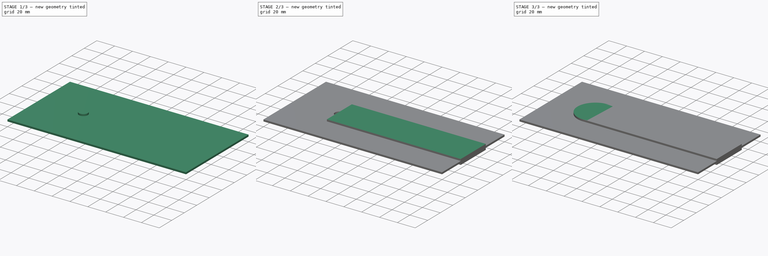
[diagram: build sequence overview — one tinted view per stage of 3, left to right]
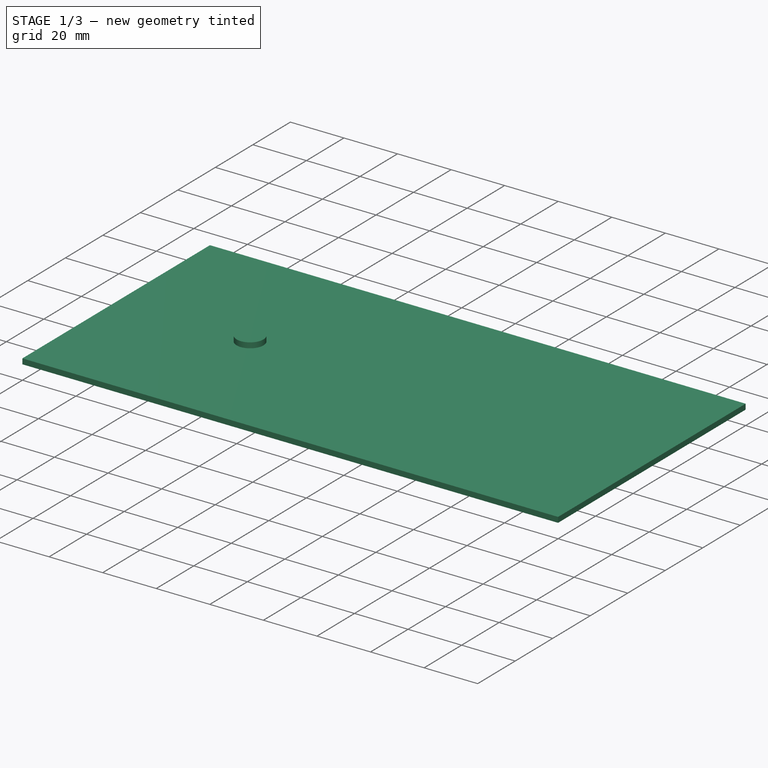
[diagram: stage 1 of 3 — iso view after this stage's code; geometry added in this stage tinted green]
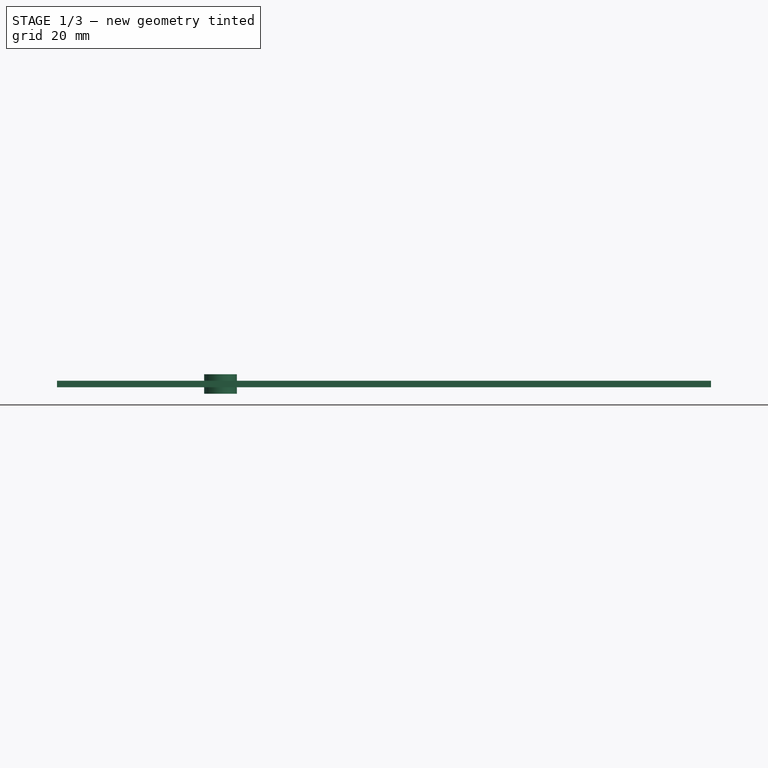
[diagram: stage 1 of 3 — front view after this stage's code; geometry added in this stage tinted green]
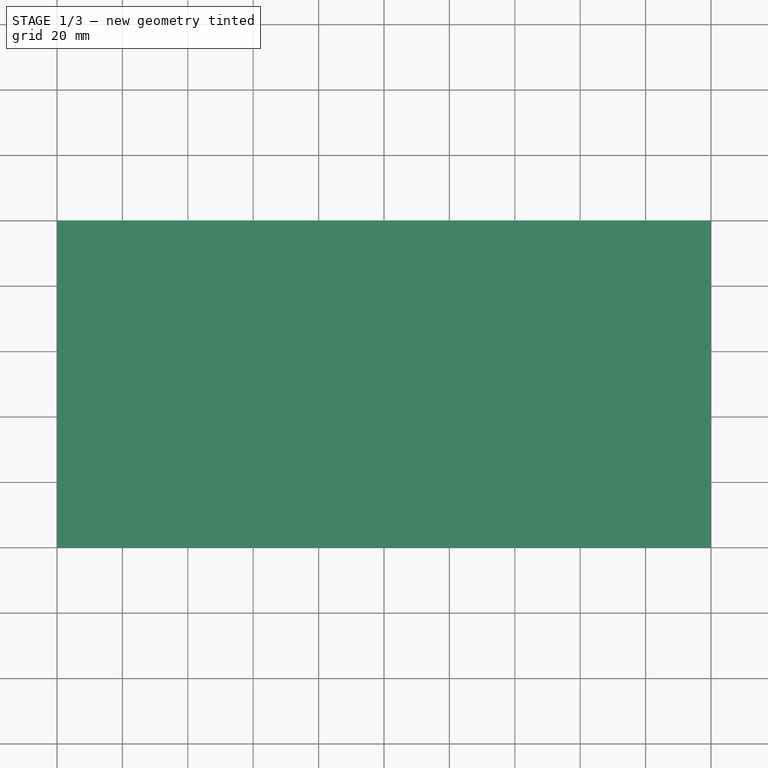
[diagram: stage 1 of 3 — top view after this stage's code; geometry added in this stage tinted green]
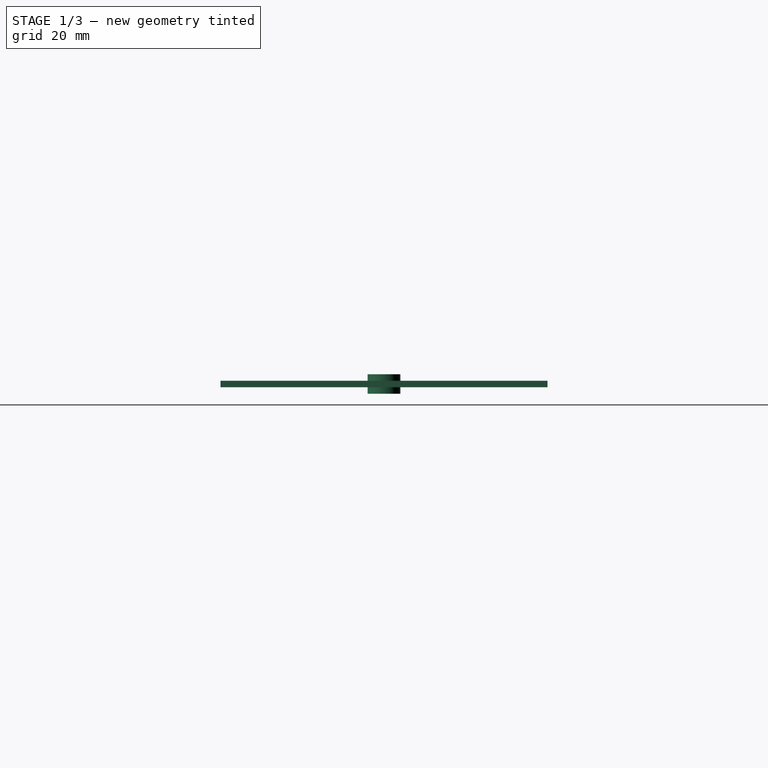
[diagram: stage 1 of 3 — right view after this stage's code; geometry added in this stage tinted green]
FCSTD DOCUMENT  (FreeCAD 0.19R24291 (Git))
Label: vonKarman2D
License: All rights reserved
LicenseURL: http://en.wikipedia.org/wiki/All_rights_reserved
objects: Part::FeaturePython×11, Sketcher::SketchObject×4, PartDesign::Pad×4, PartDesign::Body×4, App::DocumentObjectGroupPython×2, PartDesign::Boolean×1, App::MaterialObjectPython×1
note: 28 computed .brp shape members not serialized (recipe doc carries the construction recipe); baked Part::Feature solids carry a one-line shape summary decoded from their .brp

FEATURE [Sketcher::SketchObject] Sketch
  FullyConstrained = true
  MapMode = 5
  Support = -> [XY_Plane]
  sketch-geometry (5):
    g0: LineSegment StartX=0 StartY=0 StartZ=0 EndX=200 EndY=0 EndZ=0
    g1: LineSegment StartX=200 StartY=0 StartZ=0 EndX=200 EndY=100 EndZ=0
    g2: LineSegment StartX=200 StartY=100 StartZ=0 EndX=0 EndY=100 EndZ=0
    g3: LineSegment StartX=0 StartY=100 StartZ=0 EndX=0 EndY=0 EndZ=0
    g4: GeomPoint X=50 Y=50 Z=0
  constraints (13):
    c: Coincident(g0,g1)
    c: Coincident(g1,g2)
    c: Coincident(g2,g3)
    c: Coincident(g3,g0)
    c: Horizontal(g0)
    c: Horizontal(g2)
    c: Vertical(g1)
    c: Vertical(g3)
    c: Coincident(g0,g-1)
    c: Distance(g4,g3) = 50
    c: Distance(g4,g0) = 50
    c: Distance(g1) = 100
    c: Distance(g0) = 200
FEATURE [PartDesign::Pad] Pad
  Direction = (1,1,1)
  Length = 2
  Length2 = 100
  Profile = -> Sketch
  Type = 0
FEATURE [PartDesign::Body] Body003  label="Box_refinement"
  Group = -> [Sketch003,Pad002]
  Origin = -> Origin003
  Tip = -> Pad002
FEATURE [Sketcher::SketchObject] Sketch004
  FullyConstrained = true
  MapMode = 5
  Support = -> [XY_Plane004]
  sketch-geometry (2):
    g0: GeomPoint X=50 Y=50 Z=0
    g1: Circle CenterX=50 CenterY=50 CenterZ=0 NormalX=0 NormalY=0 NormalZ=1 AngleXU=0 Radius=5
  constraints (4):
    c: DistanceY(g-1,g0) = 50
    c: DistanceX(g-2,g0) = 50
    c: Coincident(g1,g0)
    c: Radius(g1) = 5
FEATURE [PartDesign::Pad] Pad003
  Direction = (1,1,1)
  Length = 4
  Length2 = 2
  Profile = -> Sketch004
  Type = 4
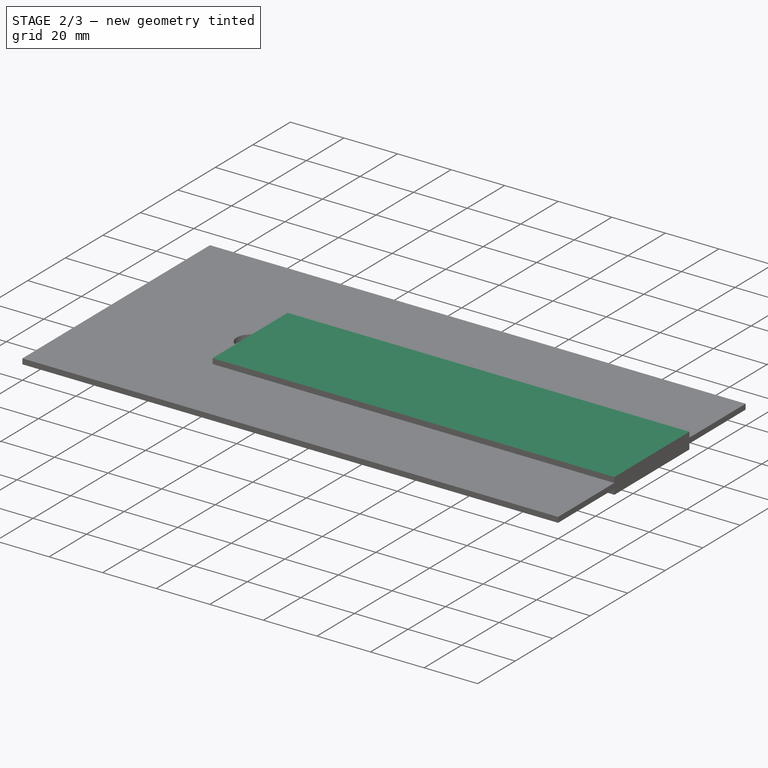
[diagram: stage 2 of 3 — iso view after this stage's code; geometry added in this stage tinted green]
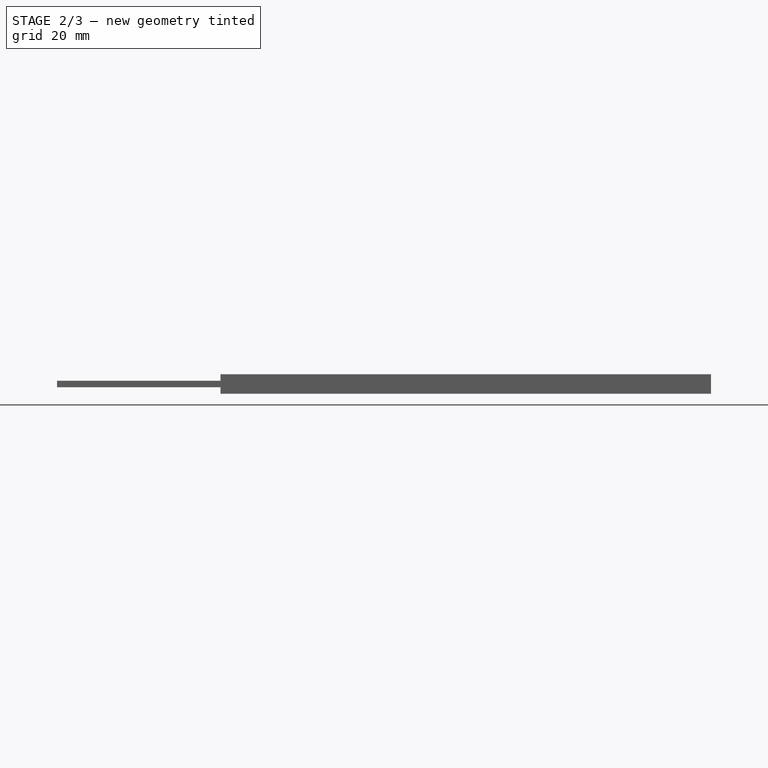
[diagram: stage 2 of 3 — front view after this stage's code; geometry added in this stage tinted green]
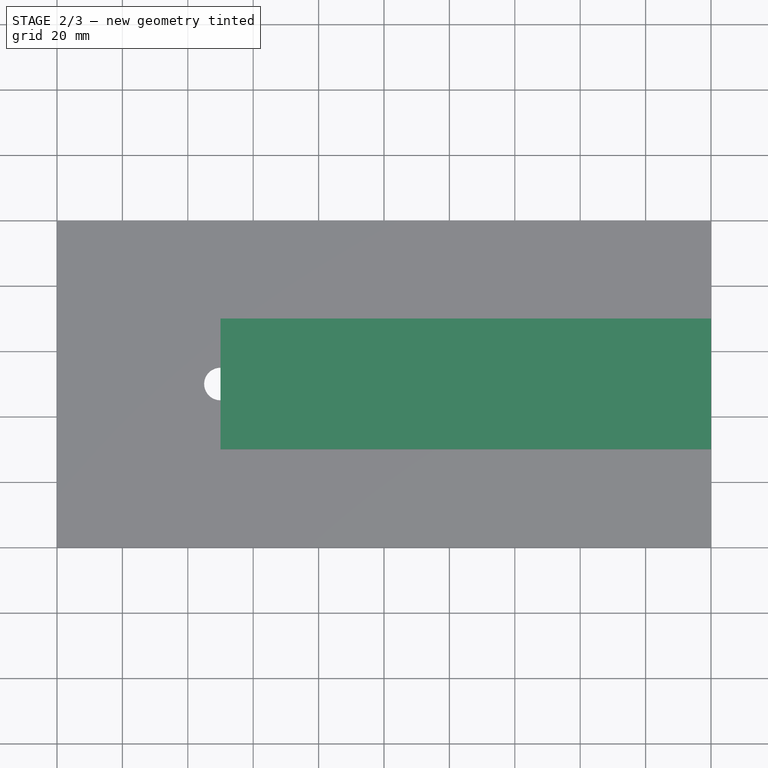
[diagram: stage 2 of 3 — top view after this stage's code; geometry added in this stage tinted green]
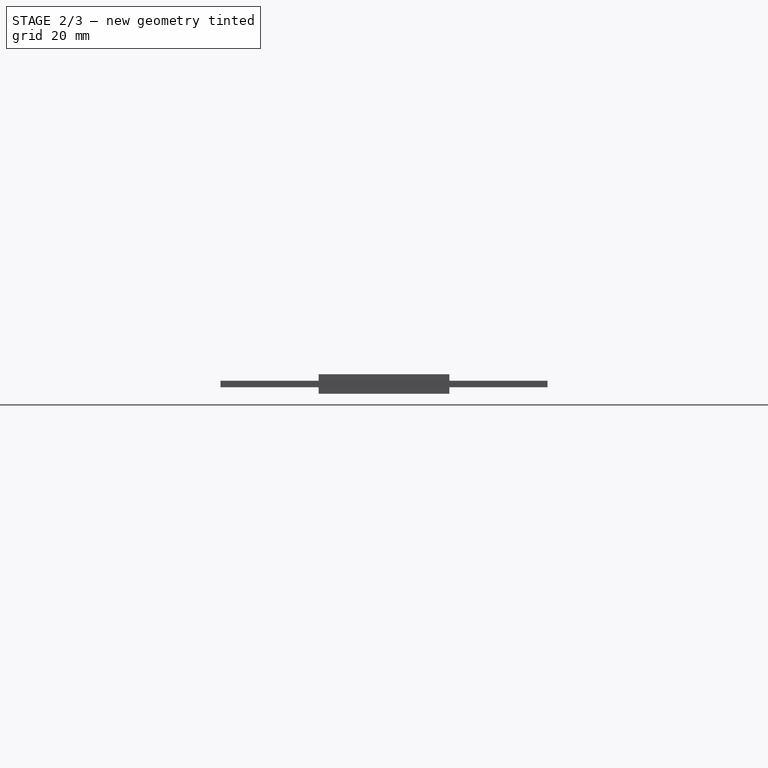
[diagram: stage 2 of 3 — right view after this stage's code; geometry added in this stage tinted green]
FEATURE [PartDesign::Body] Body001  label="Cylinder_refinement"
  Group = -> [Sketch001,Pad001]
  Origin = -> Origin001
  Tip = -> Pad001
FEATURE [Sketcher::SketchObject] Sketch003
  FullyConstrained = true
  MapMode = 5
  Support = -> [XY_Plane003]
  sketch-geometry (5):
    g0: GeomPoint X=50 Y=30 Z=0
    g1: LineSegment StartX=50 StartY=30 StartZ=0 EndX=200 EndY=30 EndZ=0
    g2: LineSegment StartX=200 StartY=30 StartZ=0 EndX=200 EndY=70 EndZ=0
    g3: LineSegment StartX=200 StartY=70 StartZ=0 EndX=50 EndY=70 EndZ=0
    g4: LineSegment StartX=50 StartY=70 StartZ=0 EndX=50 EndY=30 EndZ=0
  constraints (13):
    c: DistanceY(g-1,g0) = 30
    c: DistanceX(g-2,g0) = 50
    c: Coincident(g1,g2)
    c: Coincident(g2,g3)
    c: Coincident(g3,g4)
    c: Coincident(g4,g1)
    c: Horizontal(g1)
    c: Horizontal(g3)
    c: Vertical(g2)
    c: Vertical(g4)
    c: Coincident(g1,g0)
    c: Distance(g1) = 150
    c: Distance(g4) = 40
FEATURE [PartDesign::Pad] Pad002
  Direction = (1,1,1)
  Length = 4
  Length2 = 2
  Profile = -> Sketch003
  Refine = true
  Type = 4
FEATURE [PartDesign::Body] Body004  label="Cylinder001"
  Group = -> [Sketch004,Pad003]
  Origin = -> Origin004
  Tip = -> Pad003
FEATURE [PartDesign::Boolean] Boolean
  BaseFeature = -> Pad
  Group = -> [Body004]
  Type = 1
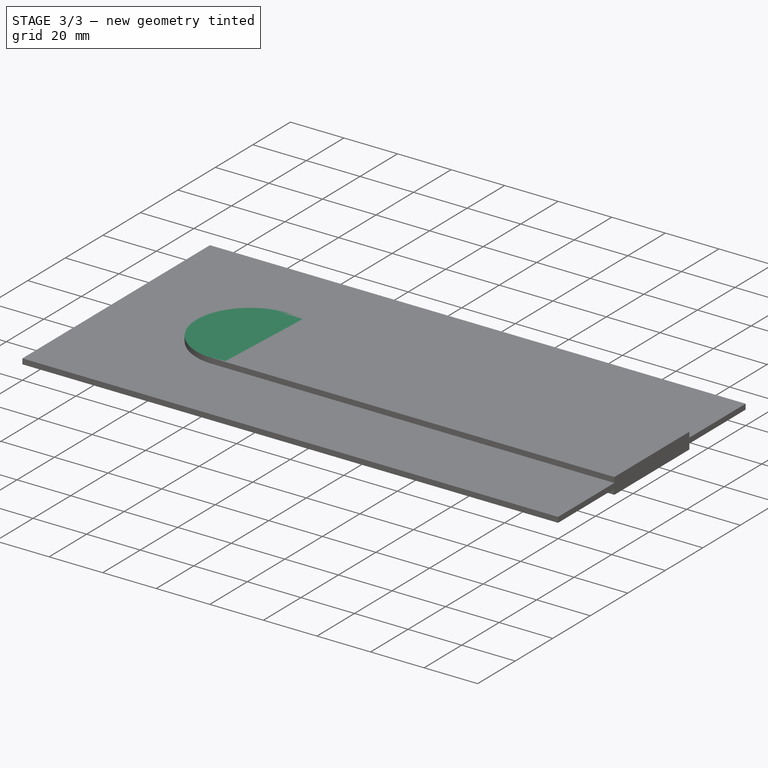
[diagram: stage 3 of 3 — iso view after this stage's code; geometry added in this stage tinted green]
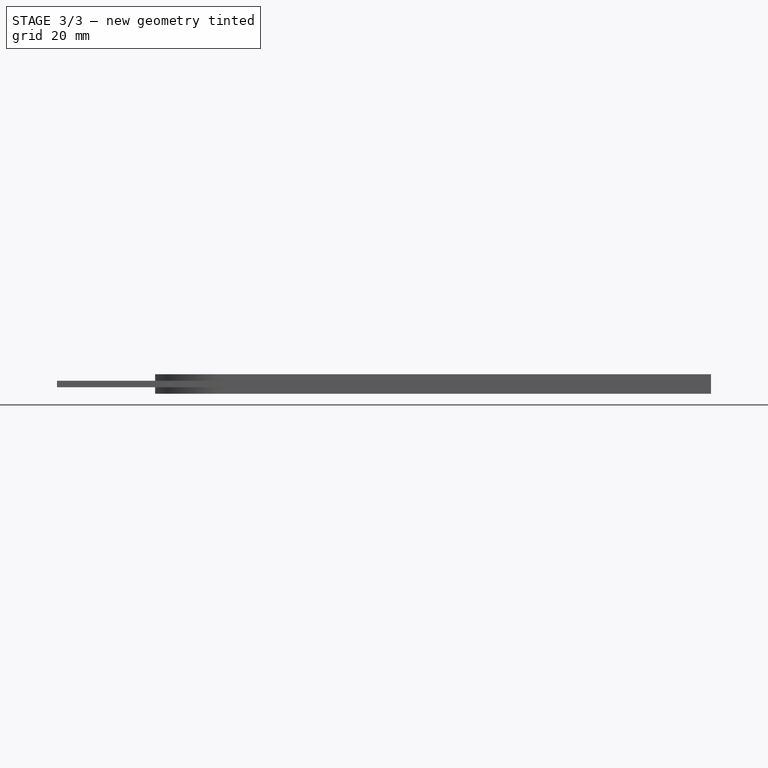
[diagram: stage 3 of 3 — front view after this stage's code; geometry added in this stage tinted green]
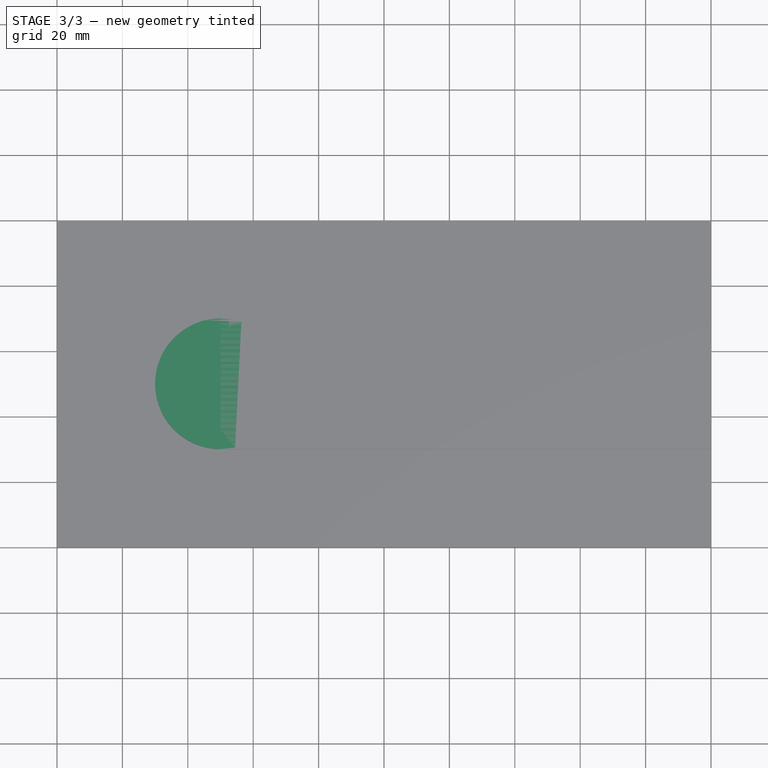
[diagram: stage 3 of 3 — top view after this stage's code; geometry added in this stage tinted green]
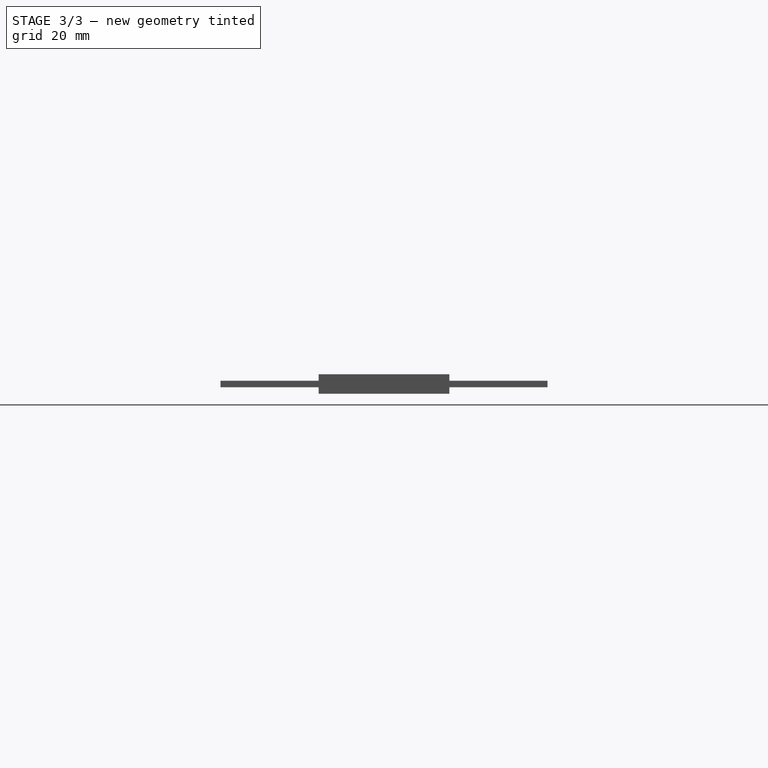
[diagram: stage 3 of 3 — right view after this stage's code; geometry added in this stage tinted green]
FEATURE [Sketcher::SketchObject] Sketch001
  FullyConstrained = true
  MapMode = 5
  Support = -> [XY_Plane001]
  sketch-geometry (2):
    g0: GeomPoint X=50 Y=50 Z=0
    g1: Circle CenterX=50 CenterY=50 CenterZ=0 NormalX=0 NormalY=0 NormalZ=1 AngleXU=0 Radius=20
  constraints (4):
    c: DistanceY(g-1,g0) = 50
    c: DistanceX(g-2,g0) = 50
    c: Coincident(g1,g0)
    c: Radius(g1) = 20
FEATURE [PartDesign::Pad] Pad001
  Direction = (0,0,1)
  Length = 4
  Length2 = 2
  Midplane = true
  Offset = 0.1
  Profile = -> Sketch001
  Refine = true
  Type = 4
FEATURE [PartDesign::Body] Body  label="Plate"
  Group = -> [Sketch,Pad,Boolean]
  Origin = -> Origin
  Tip = -> Boolean
FEATURE [Part::FeaturePython] PhysicsModel  # WARN: FeaturePython — macro-defined, semantics opaque (R4)
  Flow = 0
  Phase = 0
  Thermal = 0
  Time = 1
  Turbulence = 1
  TurbulenceModel = 0
  gx = 0
  gy = -9800
  gz = 0
FEATURE [App::MaterialObjectPython] FluidProperties  # material (typed FeaturePython)
  Category = 1
  Material = AuthorAndLicense=Air; CardName=Air; Cp=1004.703 J/kg/K; Density=1.20 kg/m^3; Description=Standard air properties at 20 Degrees Celsius and 1 atm; DynamicViscosity=1.80e-5 kg/m/s; MolarMass=0.0289643897748887 kg/mol; Name=Air; SutherlandRefTemperature=273.15 K; SutherlandRefViscosity=1.716e-5 kg/m/s; SutherlandTemperature=110.4 K
FEATURE [Part::FeaturePython] CfdSolver  # WARN: FeaturePython — macro-defined, semantics opaque (R4)
  ConvergenceTol = 0.0001
  EndTime = 5
  InputCaseName = case
  MaxIterations = 2000
  Parallel = true
  ParallelCores = 4
  SteadyWriteInterval = 100
  TimeStep = 0.001
  TransientWriteInterval = 0.025
  expr: ConvergenceTol = 0.0001
  expr: TransientWriteInterval = 0.025s
  expr: TimeStep = 0.001s
FEATURE [Part::FeaturePython] MeshRefinement001  label="MeshRefinement"  # WARN: FeaturePython — macro-defined, semantics opaque (R4)
  ExpansionRatio = 1.25
  FirstLayerHeight = 0
  Internal = true
  LinkedObjects = -> [Body001,Body003]
  NumberLayers = 1
  RefinementThickness = 0
  RegionEdgeRefinement = 1
  RelativeLength = 0.5
FEATURE [App::DocumentObjectGroupPython] Body_Mesh  # scripted group (container) (typed FeaturePython)
  CaseName = meshCase
  CellsBetweenLevels = 3
  CharacteristicLengthMax = 1
  EdgeRefinement = 1
  ElementDimension = 0
  Group = -> [MeshRefinement001]
  MeshUtility = 1
  NumberOfProcesses = 1
  NumberOfThreads = 0
  Part = -> Body
  PointInMesh = x=0.0 mm; y=0.0 mm; z=0.0 mm
  STLLinearDeflection = 0.05
FEATURE [Part::FeaturePython] CfdFluidBoundary  label="constraint"  # WARN: FeaturePython — macro-defined, semantics opaque (R4)
  BoundarySubType = 16
  BoundaryType = 4
  HeatFlux = 0
  HeatTransferCoeff = 0
  LinkedObjects = -> [Body]
  MassFlowRate = 0
  PorousBaffleMethod = 0
  Pressure = 0
  PressureDropCoeff = 0
  ReverseNormal = false
  ScreenSpacing = 2
  ScreenWireDiameter = 0.2
  SlipRatio = 0
  SpecificDissipationRate = 57
  Temperature = 290
  ThermalBoundaryType = 0
  TurbulenceInletSpecification = 0
  TurbulenceIntensity = 0.1
  TurbulenceLengthScale = 100
  TurbulentKineticEnergy = 10000
  Ux = 0
  Uy = 0
  Uz = 0
  VelocityIsCartesian = true
  VelocityMag = 0
  VolFlowRate = 0
FEATURE [Part::FeaturePython] CfdFluidBoundary001  label="constraint001"  # WARN: FeaturePython — macro-defined, semantics opaque (R4)
  BoundarySubType = 16
  BoundaryType = 4
  HeatFlux = 0
  HeatTransferCoeff = 0
  LinkedObjects = -> [Body]
  MassFlowRate = 0
  PorousBaffleMethod = 0
  Pressure = 0
  PressureDropCoeff = 0
  ReverseNormal = false
  ScreenSpacing = 2
  ScreenWireDiameter = 0.2
  SlipRatio = 0
  SpecificDissipationRate = 57
  Temperature = 290
  ThermalBoundaryType = 0
  TurbulenceInletSpecification = 0
  TurbulenceIntensity = 0.1
  TurbulenceLengthScale = 100
  TurbulentKineticEnergy = 10000
  Ux = 0
  Uy = 0
  Uz = 0
  VelocityIsCartesian = true
  VelocityMag = 0
  VolFlowRate = 0
FEATURE [Part::FeaturePython] CfdFluidBoundary002  label="wall"  # WARN: FeaturePython — macro-defined, semantics opaque (R4)
  BoundarySubType = 0
  BoundaryType = 0
  HeatFlux = 0
  HeatTransferCoeff = 0
  LinkedObjects = -> [Body]
  MassFlowRate = 0
  PorousBaffleMethod = 0
  Pressure = 0
  PressureDropCoeff = 0
  ReverseNormal = false
  ScreenSpacing = 2
  ScreenWireDiameter = 0.2
  SlipRatio = 0
  SpecificDissipationRate = 57
  Temperature = 290
  ThermalBoundaryType = 0
  TurbulenceInletSpecification = 0
  TurbulenceIntensity = 0.1
  TurbulenceLengthScale = 100
  TurbulentKineticEnergy = 10000
  Ux = 0
  Uy = 0
  Uz = 0
  VelocityIsCartesian = true
  VelocityMag = 0
  VolFlowRate = 0
FEATURE [Part::FeaturePython] CfdFluidBoundary003  label="inlet"  # WARN: FeaturePython — macro-defined, semantics opaque (R4)
  BoundarySubType = 5
  BoundaryType = 1
  HeatFlux = 0
  HeatTransferCoeff = 0
  LinkedObjects = -> [Body]
  MassFlowRate = 0
  PorousBaffleMethod = 0
  Pressure = 0
  PressureDropCoeff = 0
  ReverseNormal = true
  ScreenSpacing = 2
  ScreenWireDiameter = 0.2
  SlipRatio = 0
  SpecificDissipationRate = 57
  Temperature = 290
  ThermalBoundaryType = 0
  TurbulenceInletSpecification = 0
  TurbulenceIntensity = 0.1
  TurbulenceLengthScale = 100
  TurbulentKineticEnergy = 10000
  Ux = 130
  Uy = 0
  Uz = 0
  VelocityIsCartesian = true
  VelocityMag = 0
  VolFlowRate = 0
FEATURE [Part::FeaturePython] InitialiseFields  # WARN: FeaturePython — macro-defined, semantics opaque (R4)
  BoundaryP = -> CfdFluidBoundary003
  BoundaryT = -> CfdFluidBoundary003
  BoundaryTurb = -> CfdFluidBoundary003
  BoundaryU = -> CfdFluidBoundary003
  PotentialFlow = false
  PotentialFlowP = false
  Pressure = 0
  Temperature = 290
  UseInletTemperatureValue = false
  UseInletTurbulenceValues = false
  UseInletUValues = false
  UseOutletPValue = false
  Ux = 50
  Uy = -10
  Uz = 0
  k = 10000
  omega = 57
FEATURE [Part::FeaturePython] CfdFluidBoundary004  label="outlet"  # WARN: FeaturePython — macro-defined, semantics opaque (R4)
  BoundarySubType = 10
  BoundaryType = 2
  HeatFlux = 0
  HeatTransferCoeff = 0
  LinkedObjects = -> [Body]
  MassFlowRate = 0
  PorousBaffleMethod = 0
  Pressure = 0
  PressureDropCoeff = 0
  ReverseNormal = false
  ScreenSpacing = 2
  ScreenWireDiameter = 0.2
  SlipRatio = 0
  SpecificDissipationRate = 57
  Temperature = 290
  ThermalBoundaryType = 0
  TurbulenceInletSpecification = 0
  TurbulenceIntensity = 0.1
  TurbulenceLengthScale = 100
  TurbulentKineticEnergy = 10000
  Ux = 0
  Uy = 0
  Uz = 0
  VelocityIsCartesian = true
  VelocityMag = 0
  VolFlowRate = 0
FEATURE [Part::FeaturePython] CfdFluidBoundary005  label="open"  # WARN: FeaturePython — macro-defined, semantics opaque (R4)
  BoundarySubType = 13
  BoundaryType = 3
  HeatFlux = 0
  HeatTransferCoeff = 0
  LinkedObjects = -> [Body]
  MassFlowRate = 0
  PorousBaffleMethod = 0
  Pressure = 0
  PressureDropCoeff = 0
  ReverseNormal = false
  ScreenSpacing = 2
  ScreenWireDiameter = 0.2
  SlipRatio = 0
  SpecificDissipationRate = 57
  Temperature = 290
  ThermalBoundaryType = 0
  TurbulenceInletSpecification = 0
  TurbulenceIntensity = 0.1
  TurbulenceLengthScale = 100
  TurbulentKineticEnergy = 10000
  Ux = 0
  Uy = 0
  Uz = 0
  VelocityIsCartesian = true
  VelocityMag = 0
  VolFlowRate = 0
FEATURE [Part::FeaturePython] CfdFluidBoundary006  label="open001"  # WARN: FeaturePython — macro-defined, semantics opaque (R4)
  BoundarySubType = 13
  BoundaryType = 3
  HeatFlux = 0
  HeatTransferCoeff = 0
  LinkedObjects = -> [Body]
  MassFlowRate = 0
  PorousBaffleMethod = 0
  Pressure = 0
  PressureDropCoeff = 0
  ReverseNormal = false
  ScreenSpacing = 2
  ScreenWireDiameter = 0.2
  SlipRatio = 0
  SpecificDissipationRate = 57
  Temperature = 290
  ThermalBoundaryType = 0
  TurbulenceInletSpecification = 0
  TurbulenceIntensity = 0.1
  TurbulenceLengthScale = 100
  TurbulentKineticEnergy = 10000
  Ux = 0
  Uy = 0
  Uz = 0
  VelocityIsCartesian = true
  VelocityMag = 0
  VolFlowRate = 0
FEATURE [App::DocumentObjectGroupPython] CfdAnalysis  # scripted group (container) (typed FeaturePython)
  Group = -> [PhysicsModel,FluidProperties,InitialiseFields,CfdSolver,Body_Mesh,CfdFluidBoundary,CfdFluidBoundary001,CfdFluidBoundary002,CfdFluidBoundary003,CfdFluidBoundary004,CfdFluidBoundary005,CfdFluidBoundary006]
  IsActiveAnalysis = true
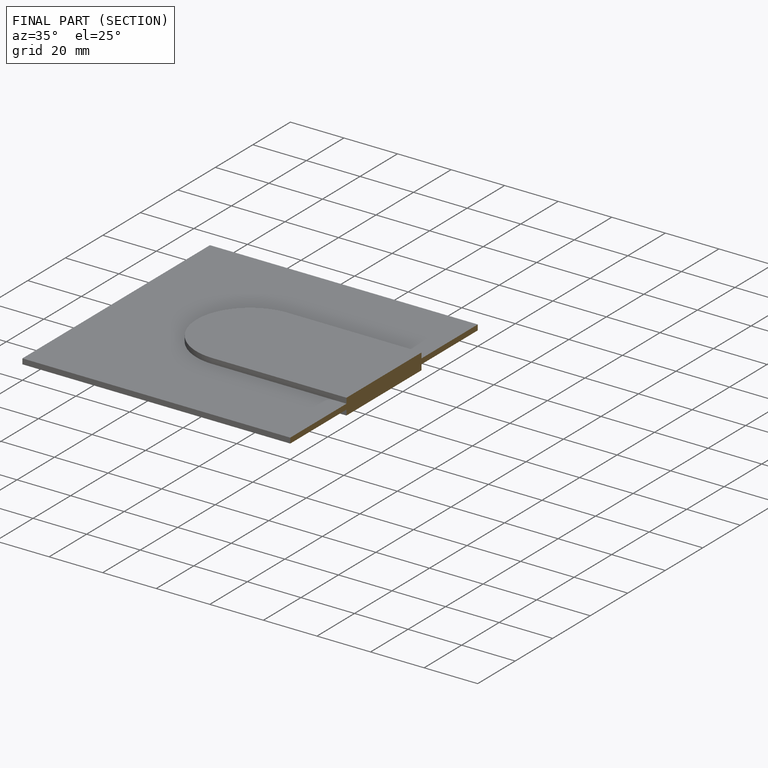
[diagram: finished part — half-section view (interior)]
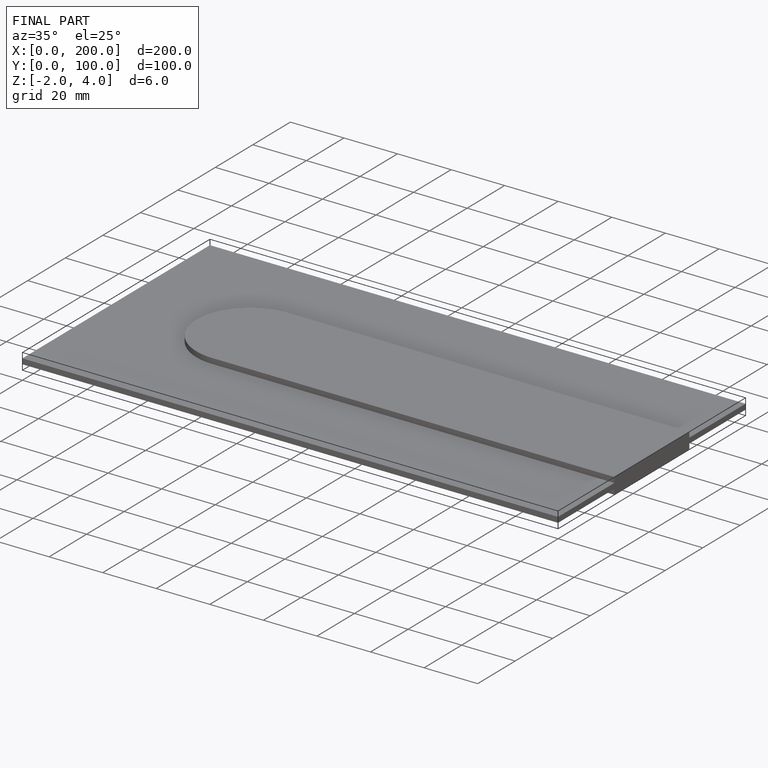
[diagram: finished part — iso view with bounding-box wireframe]
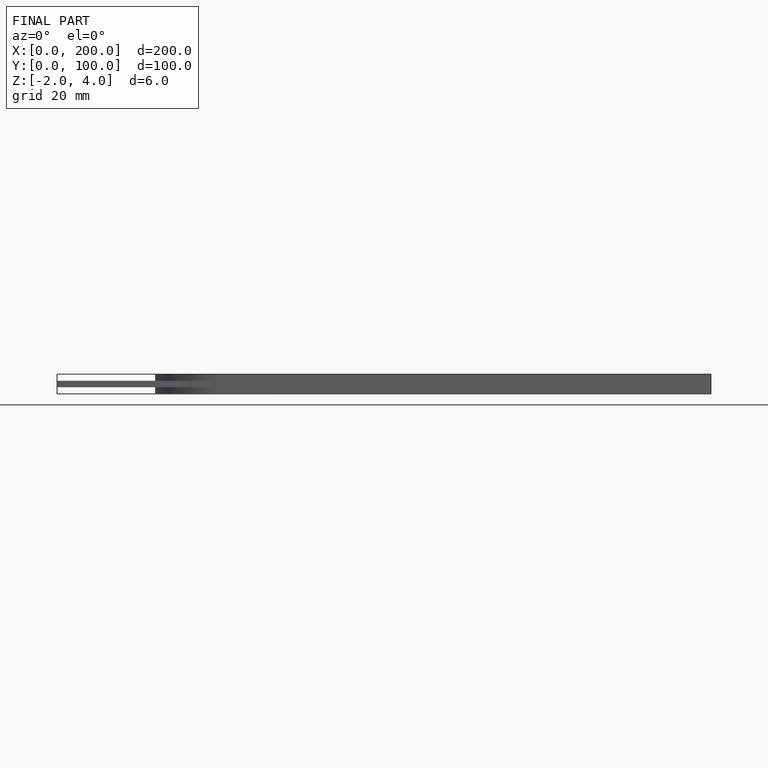
[diagram: finished part — front view with bounding-box wireframe]
